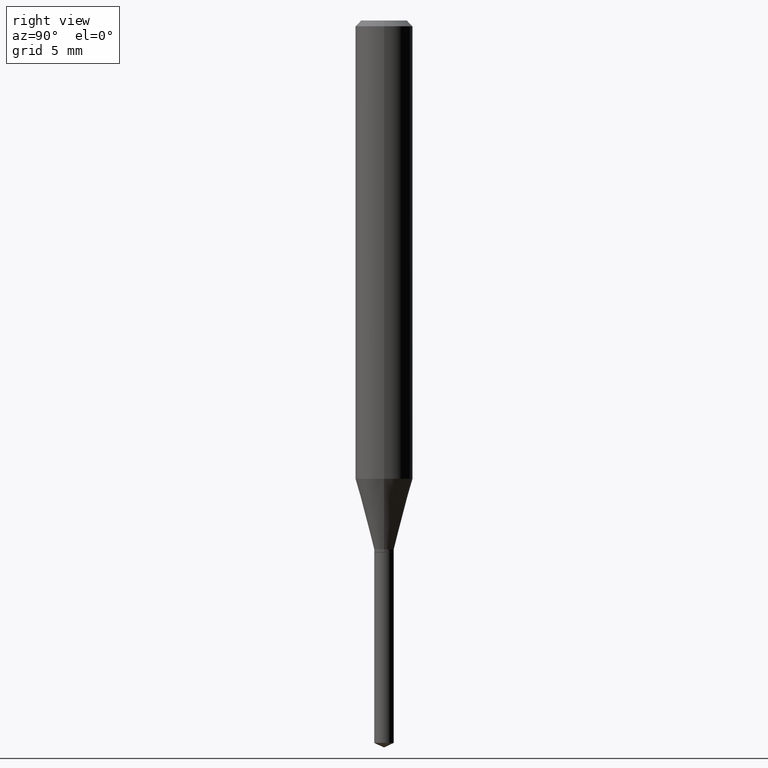
[diagram: clean part render]
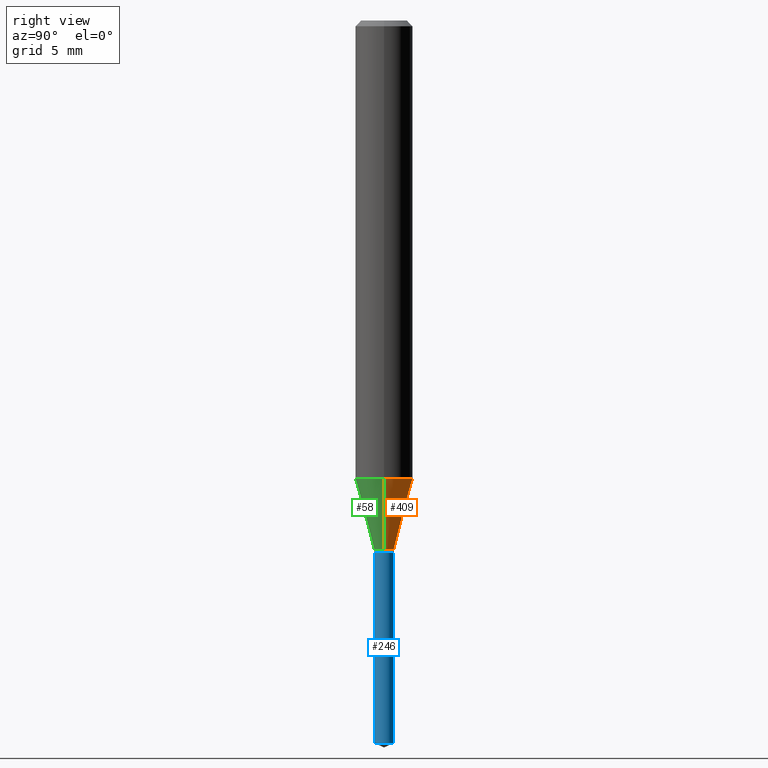
[diagram: same view with three faces highlighted in distinct colors, each labeled with its STEP entity id]
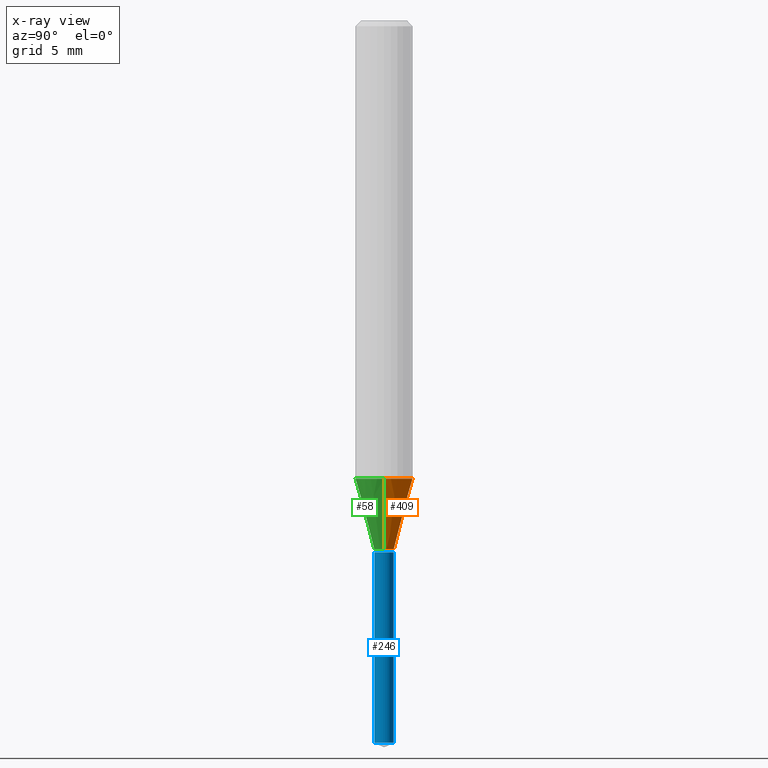
[diagram: x-ray of the same camera — body ghosted, the three highlighted faces saturated]
A machine part, right view with three faces highlighted in distinct colors.
The next image is the same camera in x-ray (body ghosted, the three faces saturated) — at least one of them is partly hidden behind the body in this view.
Their STEP definitions:

[orange] entity #409 — the highlighted conical surface has half-angle 15 deg.
#3 = VERTEX_POINT ( 'NONE', #141 ) ;
#10 = VERTEX_POINT ( 'NONE', #59 ) ;
#16 = DIRECTION ( 'NONE',  ( -0.2588190451025212391, 5.211531920934549464E-15, 0.9659258262890679791 ) ) ;
#17 = LINE ( 'NONE', #398, #170 ) ;
#48 = VERTEX_POINT ( 'NONE', #261 ) ;
#59 = CARTESIAN_POINT ( 'NONE',  ( 0.02009999999999999981, -3.940834987152257562E-15, -1.088499999999999801 ) ) ;
#62 = ORIENTED_EDGE ( 'NONE', *, *, #440, .F. ) ;
#90 = DIRECTION ( 'NONE',  ( 1.000000000000000000, -6.982962677686266711E-15, 0.000000000000000000 ) ) ;
#100 = DIRECTION ( 'NONE',  ( 0.2588190451025212391, 1.565188264969622362E-15, 0.9659258262890679791 ) ) ;
#123 = AXIS2_PLACEMENT_3D ( 'NONE', #179, #210, #90 ) ;
#141 = CARTESIAN_POINT ( 'NONE',  ( -0.02009999999999999981, -3.667259921124801632E-15, -1.088499999999999801 ) ) ;
#142 = AXIS2_PLACEMENT_3D ( 'NONE', #373, #160, #375 ) ;
#144 = FACE_OUTER_BOUND ( 'NONE', #348, .T. ) ;
#160 = DIRECTION ( 'NONE',  ( -2.445468806185136597E-29, 3.491481338843145583E-15, 1.000000000000000000 ) ) ;
#170 = VECTOR ( 'NONE', #16, 39.37007874015748854 ) ;
#173 = EDGE_CURVE ( 'NONE', #10, #3, #352, .T. ) ;
#179 = CARTESIAN_POINT ( 'NONE',  ( 2.306411186736869099E-29, -3.292943912358867169E-15, -0.9431366210451919141 ) ) ;
#182 = CARTESIAN_POINT ( 'NONE',  ( 2.661892795532520979E-29, -3.800477437330763942E-15, -1.088499999999999801 ) ) ;
#210 = DIRECTION ( 'NONE',  ( -2.445468806185136597E-29, 3.491481338843145583E-15, 1.000000000000000000 ) ) ;
#215 = CONICAL_SURFACE ( 'NONE', #426, 0.02009999999999999981, 0.2617993877991499629 ) ;
#226 = ORIENTED_EDGE ( 'NONE', *, *, #406, .T. ) ;
#261 = CARTESIAN_POINT ( 'NONE',  ( -0.05905000000000011628, -2.873368426892526887E-15, -0.9431366210451919141 ) ) ;
#272 = CIRCLE ( 'NONE', #123, 0.05905000000000011628 ) ;
#289 = DIRECTION ( 'NONE',  ( -2.445468806185136597E-29, 3.491481338843145583E-15, 1.000000000000000000 ) ) ;
#319 = DIRECTION ( 'NONE',  ( 1.000000000000000000, -6.982962677686270655E-15, 0.000000000000000000 ) ) ;
#322 = CARTESIAN_POINT ( 'NONE',  ( 0.02009999999999999981, -3.940834987152257562E-15, -1.088499999999999801 ) ) ;
#323 = EDGE_CURVE ( 'NONE', #437, #48, #272, .T. ) ;
#348 = EDGE_LOOP ( 'NONE', ( #419, #226, #358, #62 ) ) ;
#352 = CIRCLE ( 'NONE', #142, 0.02009999999999999981 ) ;
#358 = ORIENTED_EDGE ( 'NONE', *, *, #323, .F. ) ;
#373 = CARTESIAN_POINT ( 'NONE',  ( 2.661892795532520979E-29, -3.800477437330763942E-15, -1.088499999999999801 ) ) ;
#375 = DIRECTION ( 'NONE',  ( 1.000000000000000000, -6.982962677686270655E-15, 0.000000000000000000 ) ) ;
#398 = CARTESIAN_POINT ( 'NONE',  ( -0.02009999999999999981, -3.657658347442982967E-15, -1.088499999999999801 ) ) ;
#406 = EDGE_CURVE ( 'NONE', #3, #48, #17, .T. ) ;
#409 = ADVANCED_FACE ( 'NONE', ( #144 ), #215, .T. ) ;
#419 = ORIENTED_EDGE ( 'NONE', *, *, #173, .T. ) ;
#426 = AXIS2_PLACEMENT_3D ( 'NONE', #182, #289, #319 ) ;
#428 = CARTESIAN_POINT ( 'NONE',  ( 0.05905000000000011628, -3.705287858476242089E-15, -0.9431366210451919141 ) ) ;
#430 = LINE ( 'NONE', #322, #468 ) ;
#437 = VERTEX_POINT ( 'NONE', #428 ) ;
#440 = EDGE_CURVE ( 'NONE', #10, #437, #430, .T. ) ;
#468 = VECTOR ( 'NONE', #100, 39.37007874015748854 ) ;

[blue] entity #246 — the highlighted cylindrical surface (edge-blend (fillet) strip) has radius 0.5105 mm, axis along (-0, 0, 1).
#4 = CARTESIAN_POINT ( 'NONE',  ( 1.428190898878068587E-16, 0.02009999999999617995, -1.094500000000000028 ) ) ;
#5 = ORIENTED_EDGE ( 'NONE', *, *, #455, .F. ) ;
#30 = EDGE_CURVE ( 'NONE', #85, #396, #361, .T. ) ;
#50 = DIRECTION ( 'NONE',  ( -6.982962677686265922E-15, -1.000000000000000000, 6.795641775284236638E-15 ) ) ;
#53 = CYLINDRICAL_SURFACE ( 'NONE', #83, 0.02009999999999999981 ) ;
#70 = CARTESIAN_POINT ( 'NONE',  ( -1.403575498214575790E-16, -0.02010000000000519357, -1.486727216071084490 ) ) ;
#83 = AXIS2_PLACEMENT_3D ( 'NONE', #453, #174, #50 ) ;
#85 = VERTEX_POINT ( 'NONE', #70 ) ;
#106 = ORIENTED_EDGE ( 'NONE', *, *, #30, .T. ) ;
#115 = VECTOR ( 'NONE', #334, 39.37007874015748143 ) ;
#130 = DIRECTION ( 'NONE',  ( -6.982962677686265922E-15, -1.000000000000000000, 0.000000000000000000 ) ) ;
#131 = CARTESIAN_POINT ( 'NONE',  ( -1.403575498214671933E-16, -0.02010000000000381967, -1.094499999999999806 ) ) ;
#147 = CARTESIAN_POINT ( 'NONE',  ( 1.428190898878164976E-16, 0.02009999999999480952, -1.486727216071084490 ) ) ;
#163 = CARTESIAN_POINT ( 'NONE',  ( 3.635745582615888568E-29, -5.190879539783315426E-15, -1.486727216071084490 ) ) ;
#174 = DIRECTION ( 'NONE',  ( -2.445470214571802116E-29, 3.491479321953280158E-15, 1.000000000000000000 ) ) ;
#180 = ORIENTED_EDGE ( 'NONE', *, *, #218, .F. ) ;
#203 = CARTESIAN_POINT ( 'NONE',  ( -1.403575498214671933E-16, -0.02010000000000381967, -1.094499999999999806 ) ) ;
#205 = FACE_OUTER_BOUND ( 'NONE', #439, .T. ) ;
#218 = EDGE_CURVE ( 'NONE', #85, #380, #362, .T. ) ;
#246 = ADVANCED_FACE ( 'NONE', ( #205 ), #53, .T. ) ;
#264 = VECTOR ( 'NONE', #447, 39.37007874015748143 ) ;
#333 = AXIS2_PLACEMENT_3D ( 'NONE', #163, #448, #130 ) ;
#334 = DIRECTION ( 'NONE',  ( -2.445470214571802396E-29, 3.491479321953280158E-15, 1.000000000000000000 ) ) ;
#344 = DIRECTION ( 'NONE',  ( -2.445470214571802116E-29, 3.491479321953280158E-15, 1.000000000000000000 ) ) ;
#356 = EDGE_CURVE ( 'NONE', #396, #385, #410, .T. ) ;
#361 = CIRCLE ( 'NONE', #333, 0.02009999999999999981 ) ;
#362 = LINE ( 'NONE', #203, #264 ) ;
#371 = ORIENTED_EDGE ( 'NONE', *, *, #356, .T. ) ;
#380 = VERTEX_POINT ( 'NONE', #131 ) ;
#383 = CARTESIAN_POINT ( 'NONE',  ( 1.428190898878164976E-16, 0.02009999999999617995, -1.094500000000000028 ) ) ;
#385 = VERTEX_POINT ( 'NONE', #383 ) ;
#395 = AXIS2_PLACEMENT_3D ( 'NONE', #466, #344, #424 ) ;
#396 = VERTEX_POINT ( 'NONE', #147 ) ;
#410 = LINE ( 'NONE', #4, #115 ) ;
#424 = DIRECTION ( 'NONE',  ( -6.982962677686265922E-15, -1.000000000000000000, 6.795641775284236638E-15 ) ) ;
#439 = EDGE_LOOP ( 'NONE', ( #106, #371, #5, #180 ) ) ;
#447 = DIRECTION ( 'NONE',  ( -2.445470214571802396E-29, 3.491479321953280158E-15, 1.000000000000000000 ) ) ;
#448 = DIRECTION ( 'NONE',  ( -2.445470214571802116E-29, 3.491479321953280158E-15, 1.000000000000000000 ) ) ;
#453 = CARTESIAN_POINT ( 'NONE',  ( 2.676565608369631794E-29, -3.821426325363822773E-15, -1.094499999999999806 ) ) ;
#455 = EDGE_CURVE ( 'NONE', #380, #385, #460, .T. ) ;
#460 = CIRCLE ( 'NONE', #395, 0.02009999999999999981 ) ;
#466 = CARTESIAN_POINT ( 'NONE',  ( 2.676565608369631794E-29, -3.821426325363822773E-15, -1.094499999999999806 ) ) ;

[green] entity #58 — the highlighted conical surface has half-angle 15 deg.
#1 = EDGE_LOOP ( 'NONE', ( #255, #157, #103, #98 ) ) ;
#3 = VERTEX_POINT ( 'NONE', #141 ) ;
#7 = CARTESIAN_POINT ( 'NONE',  ( 2.661892795532520979E-29, -3.800477437330763942E-15, -1.088499999999999801 ) ) ;
#10 = VERTEX_POINT ( 'NONE', #59 ) ;
#16 = DIRECTION ( 'NONE',  ( -0.2588190451025212391, 5.211531920934549464E-15, 0.9659258262890679791 ) ) ;
#17 = LINE ( 'NONE', #398, #170 ) ;
#27 = CARTESIAN_POINT ( 'NONE',  ( 2.306411186736869099E-29, -3.292943912358867169E-15, -0.9431366210451919141 ) ) ;
#28 = CIRCLE ( 'NONE', #256, 0.05905000000000011628 ) ;
#31 = CARTESIAN_POINT ( 'NONE',  ( 2.661892795532520979E-29, -3.800477437330763942E-15, -1.088499999999999801 ) ) ;
#48 = VERTEX_POINT ( 'NONE', #261 ) ;
#58 = ADVANCED_FACE ( 'NONE', ( #232 ), #401, .T. ) ;
#59 = CARTESIAN_POINT ( 'NONE',  ( 0.02009999999999999981, -3.940834987152257562E-15, -1.088499999999999801 ) ) ;
#74 = AXIS2_PLACEMENT_3D ( 'NONE', #31, #199, #489 ) ;
#88 = EDGE_CURVE ( 'NONE', #48, #437, #28, .T. ) ;
#98 = ORIENTED_EDGE ( 'NONE', *, *, #88, .F. ) ;
#100 = DIRECTION ( 'NONE',  ( 0.2588190451025212391, 1.565188264969622362E-15, 0.9659258262890679791 ) ) ;
#103 = ORIENTED_EDGE ( 'NONE', *, *, #440, .T. ) ;
#141 = CARTESIAN_POINT ( 'NONE',  ( -0.02009999999999999981, -3.667259921124801632E-15, -1.088499999999999801 ) ) ;
#157 = ORIENTED_EDGE ( 'NONE', *, *, #262, .T. ) ;
#170 = VECTOR ( 'NONE', #16, 39.37007874015748854 ) ;
#194 = DIRECTION ( 'NONE',  ( -2.445468806185136597E-29, 3.491481338843145583E-15, 1.000000000000000000 ) ) ;
#199 = DIRECTION ( 'NONE',  ( -2.445468806185136597E-29, 3.491481338843145583E-15, 1.000000000000000000 ) ) ;
#204 = DIRECTION ( 'NONE',  ( -2.445468806185136597E-29, 3.491481338843145583E-15, 1.000000000000000000 ) ) ;
#232 = FACE_OUTER_BOUND ( 'NONE', #1, .T. ) ;
#241 = DIRECTION ( 'NONE',  ( 1.000000000000000000, -6.982962677686266711E-15, 0.000000000000000000 ) ) ;
#255 = ORIENTED_EDGE ( 'NONE', *, *, #406, .F. ) ;
#256 = AXIS2_PLACEMENT_3D ( 'NONE', #27, #194, #241 ) ;
#261 = CARTESIAN_POINT ( 'NONE',  ( -0.05905000000000011628, -2.873368426892526887E-15, -0.9431366210451919141 ) ) ;
#262 = EDGE_CURVE ( 'NONE', #3, #10, #279, .T. ) ;
#279 = CIRCLE ( 'NONE', #342, 0.02009999999999999981 ) ;
#322 = CARTESIAN_POINT ( 'NONE',  ( 0.02009999999999999981, -3.940834987152257562E-15, -1.088499999999999801 ) ) ;
#332 = DIRECTION ( 'NONE',  ( 1.000000000000000000, -6.982962677686270655E-15, 0.000000000000000000 ) ) ;
#342 = AXIS2_PLACEMENT_3D ( 'NONE', #7, #204, #332 ) ;
#398 = CARTESIAN_POINT ( 'NONE',  ( -0.02009999999999999981, -3.657658347442982967E-15, -1.088499999999999801 ) ) ;
#401 = CONICAL_SURFACE ( 'NONE', #74, 0.02009999999999999981, 0.2617993877991499629 ) ;
#406 = EDGE_CURVE ( 'NONE', #3, #48, #17, .T. ) ;
#428 = CARTESIAN_POINT ( 'NONE',  ( 0.05905000000000011628, -3.705287858476242089E-15, -0.9431366210451919141 ) ) ;
#430 = LINE ( 'NONE', #322, #468 ) ;
#437 = VERTEX_POINT ( 'NONE', #428 ) ;
#440 = EDGE_CURVE ( 'NONE', #10, #437, #430, .T. ) ;
#468 = VECTOR ( 'NONE', #100, 39.37007874015748854 ) ;
#489 = DIRECTION ( 'NONE',  ( 1.000000000000000000, -6.982962677686270655E-15, 0.000000000000000000 ) ) ;